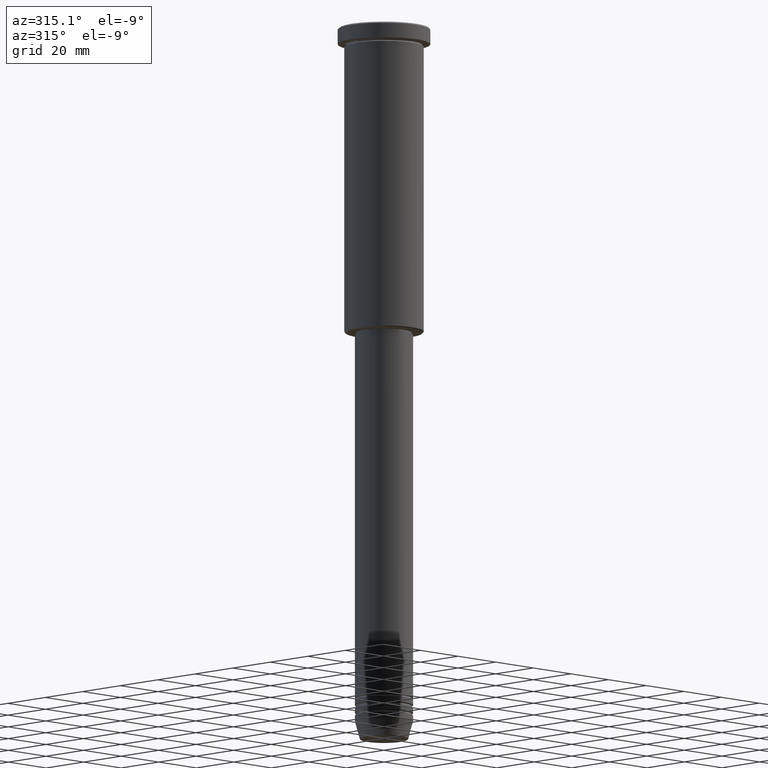
[diagram: clean part render]
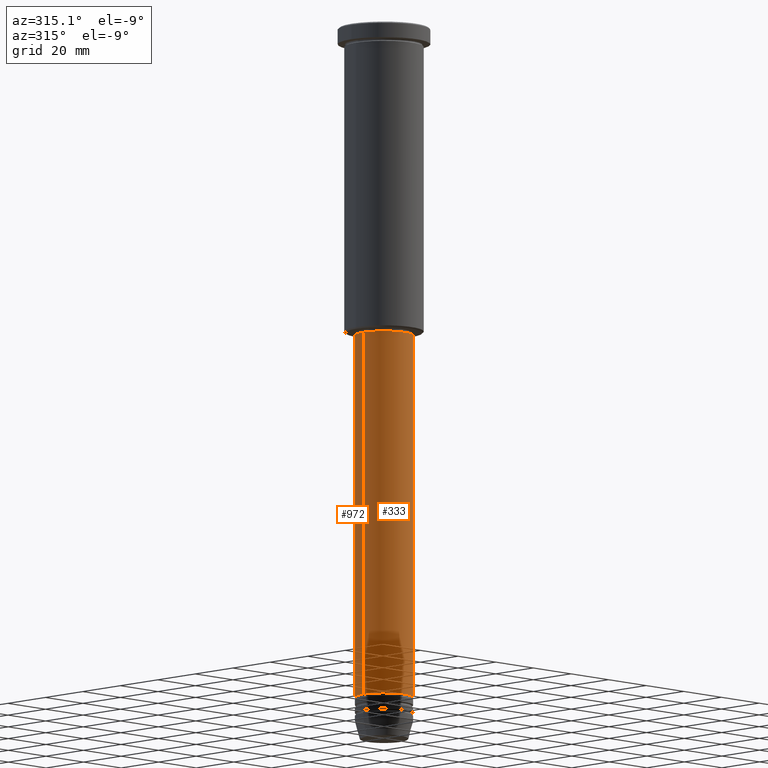
[diagram: same view with one multi-face feature highlighted, each face labeled with its STEP entity id]
A machine part, auxiliary view. The highlighted faces form ONE feature: a constant-radius fillet chain: 2 tangent blend faces with common blend radius 11 mm. The faces share edges in the B-rep.
Their STEP definitions:
[1] entity #333 (Cylinder):
#50 = EDGE_CURVE ( 'NONE', #376, #1164, #513, .T. ) ;
#53 = AXIS2_PLACEMENT_3D ( 'NONE', #147, #258, #428 ) ;
#60 = EDGE_CURVE ( 'NONE', #792, #417, #921, .T. ) ;
#98 = AXIS2_PLACEMENT_3D ( 'NONE', #1146, #142, #880 ) ;
#142 = DIRECTION ( 'NONE',  ( -0.000000000000000000, -0.000000000000000000, 1.000000000000000000 ) ) ;
#147 = CARTESIAN_POINT ( 'NONE',  ( 0.000000000000000000, 0.000000000000000000, -117.0000000000000000 ) ) ;
#185 = ORIENTED_EDGE ( 'NONE', *, *, #60, .F. ) ;
#244 = EDGE_CURVE ( 'NONE', #1164, #417, #814, .T. ) ;
#258 = DIRECTION ( 'NONE',  ( -0.000000000000000000, -0.000000000000000000, 1.000000000000000000 ) ) ;
#297 = DIRECTION ( 'NONE',  ( -0.000000000000000000, -0.000000000000000000, 1.000000000000000000 ) ) ;
#333 = ADVANCED_FACE ( 'NONE', ( #1046 ), #945, .T. ) ;
#376 = VERTEX_POINT ( 'NONE', #673 ) ;
#417 = VERTEX_POINT ( 'NONE', #942 ) ;
#428 = DIRECTION ( 'NONE',  ( 1.000000000000000000, 0.000000000000000000, 0.000000000000000000 ) ) ;
#479 = VECTOR ( 'NONE', #1075, 1000.000000000000000 ) ;
#513 = CIRCLE ( 'NONE', #98, 11.00000000000000000 ) ;
#604 = ORIENTED_EDGE ( 'NONE', *, *, #50, .T. ) ;
#626 = AXIS2_PLACEMENT_3D ( 'NONE', #1113, #297, #927 ) ;
#663 = CARTESIAN_POINT ( 'NONE',  ( -11.00000000000000000, 1.347111479062088405E-15, -117.0000000000000000 ) ) ;
#673 = CARTESIAN_POINT ( 'NONE',  ( -11.00000000000000000, 1.347111479062088405E-15, -255.0000000000000000 ) ) ;
#741 = CARTESIAN_POINT ( 'NONE',  ( -11.00000000000000000, 1.347111479062088405E-15, 0.000000000000000000 ) ) ;
#792 = VERTEX_POINT ( 'NONE', #663 ) ;
#814 = LINE ( 'NONE', #1000, #479 ) ;
#815 = EDGE_LOOP ( 'NONE', ( #1129, #604, #1062, #185 ) ) ;
#842 = CARTESIAN_POINT ( 'NONE',  ( 11.00000000000000000, 0.000000000000000000, -255.0000000000000000 ) ) ;
#880 = DIRECTION ( 'NONE',  ( 1.000000000000000000, 0.000000000000000000, 0.000000000000000000 ) ) ;
#921 = CIRCLE ( 'NONE', #53, 11.00000000000000000 ) ;
#927 = DIRECTION ( 'NONE',  ( 1.000000000000000000, 0.000000000000000000, 0.000000000000000000 ) ) ;
#942 = CARTESIAN_POINT ( 'NONE',  ( 11.00000000000000000, 0.000000000000000000, -117.0000000000000000 ) ) ;
#945 = CYLINDRICAL_SURFACE ( 'NONE', #626, 11.00000000000000000 ) ;
#958 = VECTOR ( 'NONE', #1024, 1000.000000000000000 ) ;
#1000 = CARTESIAN_POINT ( 'NONE',  ( 11.00000000000000000, 0.000000000000000000, 0.000000000000000000 ) ) ;
#1024 = DIRECTION ( 'NONE',  ( -0.000000000000000000, -0.000000000000000000, 1.000000000000000000 ) ) ;
#1046 = FACE_OUTER_BOUND ( 'NONE', #815, .T. ) ;
#1062 = ORIENTED_EDGE ( 'NONE', *, *, #244, .T. ) ;
#1075 = DIRECTION ( 'NONE',  ( -0.000000000000000000, -0.000000000000000000, 1.000000000000000000 ) ) ;
#1082 = LINE ( 'NONE', #741, #958 ) ;
#1113 = CARTESIAN_POINT ( 'NONE',  ( 0.000000000000000000, 0.000000000000000000, 0.000000000000000000 ) ) ;
#1128 = EDGE_CURVE ( 'NONE', #376, #792, #1082, .T. ) ;
#1129 = ORIENTED_EDGE ( 'NONE', *, *, #1128, .F. ) ;
#1146 = CARTESIAN_POINT ( 'NONE',  ( 0.000000000000000000, 0.000000000000000000, -255.0000000000000000 ) ) ;
#1164 = VERTEX_POINT ( 'NONE', #842 ) ;
[2] entity #972 (Cylinder):
#46 = CYLINDRICAL_SURFACE ( 'NONE', #760, 11.00000000000000000 ) ;
#136 = EDGE_CURVE ( 'NONE', #417, #792, #1162, .T. ) ;
#174 = AXIS2_PLACEMENT_3D ( 'NONE', #599, #332, #694 ) ;
#240 = ORIENTED_EDGE ( 'NONE', *, *, #1153, .T. ) ;
#244 = EDGE_CURVE ( 'NONE', #1164, #417, #814, .T. ) ;
#332 = DIRECTION ( 'NONE',  ( -0.000000000000000000, -0.000000000000000000, 1.000000000000000000 ) ) ;
#376 = VERTEX_POINT ( 'NONE', #673 ) ;
#417 = VERTEX_POINT ( 'NONE', #942 ) ;
#438 = DIRECTION ( 'NONE',  ( 1.000000000000000000, 0.000000000000000000, 0.000000000000000000 ) ) ;
#445 = CARTESIAN_POINT ( 'NONE',  ( 0.000000000000000000, 0.000000000000000000, -255.0000000000000000 ) ) ;
#446 = ORIENTED_EDGE ( 'NONE', *, *, #244, .F. ) ;
#479 = VECTOR ( 'NONE', #1075, 1000.000000000000000 ) ;
#531 = FACE_OUTER_BOUND ( 'NONE', #1090, .T. ) ;
#599 = CARTESIAN_POINT ( 'NONE',  ( 0.000000000000000000, 0.000000000000000000, -117.0000000000000000 ) ) ;
#632 = DIRECTION ( 'NONE',  ( -0.000000000000000000, -0.000000000000000000, 1.000000000000000000 ) ) ;
#642 = DIRECTION ( 'NONE',  ( 1.000000000000000000, 0.000000000000000000, 0.000000000000000000 ) ) ;
#663 = CARTESIAN_POINT ( 'NONE',  ( -11.00000000000000000, 1.347111479062088405E-15, -117.0000000000000000 ) ) ;
#673 = CARTESIAN_POINT ( 'NONE',  ( -11.00000000000000000, 1.347111479062088405E-15, -255.0000000000000000 ) ) ;
#694 = DIRECTION ( 'NONE',  ( 1.000000000000000000, 0.000000000000000000, 0.000000000000000000 ) ) ;
#695 = ORIENTED_EDGE ( 'NONE', *, *, #136, .F. ) ;
#741 = CARTESIAN_POINT ( 'NONE',  ( -11.00000000000000000, 1.347111479062088405E-15, 0.000000000000000000 ) ) ;
#760 = AXIS2_PLACEMENT_3D ( 'NONE', #1045, #957, #438 ) ;
#762 = CIRCLE ( 'NONE', #923, 11.00000000000000000 ) ;
#792 = VERTEX_POINT ( 'NONE', #663 ) ;
#804 = ORIENTED_EDGE ( 'NONE', *, *, #1128, .T. ) ;
#814 = LINE ( 'NONE', #1000, #479 ) ;
#842 = CARTESIAN_POINT ( 'NONE',  ( 11.00000000000000000, 0.000000000000000000, -255.0000000000000000 ) ) ;
#923 = AXIS2_PLACEMENT_3D ( 'NONE', #445, #632, #642 ) ;
#942 = CARTESIAN_POINT ( 'NONE',  ( 11.00000000000000000, 0.000000000000000000, -117.0000000000000000 ) ) ;
#957 = DIRECTION ( 'NONE',  ( -0.000000000000000000, -0.000000000000000000, 1.000000000000000000 ) ) ;
#958 = VECTOR ( 'NONE', #1024, 1000.000000000000000 ) ;
#972 = ADVANCED_FACE ( 'NONE', ( #531 ), #46, .T. ) ;
#1000 = CARTESIAN_POINT ( 'NONE',  ( 11.00000000000000000, 0.000000000000000000, 0.000000000000000000 ) ) ;
#1024 = DIRECTION ( 'NONE',  ( -0.000000000000000000, -0.000000000000000000, 1.000000000000000000 ) ) ;
#1045 = CARTESIAN_POINT ( 'NONE',  ( 0.000000000000000000, 0.000000000000000000, 0.000000000000000000 ) ) ;
#1075 = DIRECTION ( 'NONE',  ( -0.000000000000000000, -0.000000000000000000, 1.000000000000000000 ) ) ;
#1082 = LINE ( 'NONE', #741, #958 ) ;
#1090 = EDGE_LOOP ( 'NONE', ( #240, #804, #695, #446 ) ) ;
#1128 = EDGE_CURVE ( 'NONE', #376, #792, #1082, .T. ) ;
#1153 = EDGE_CURVE ( 'NONE', #1164, #376, #762, .T. ) ;
#1162 = CIRCLE ( 'NONE', #174, 11.00000000000000000 ) ;
#1164 = VERTEX_POINT ( 'NONE', #842 ) ;